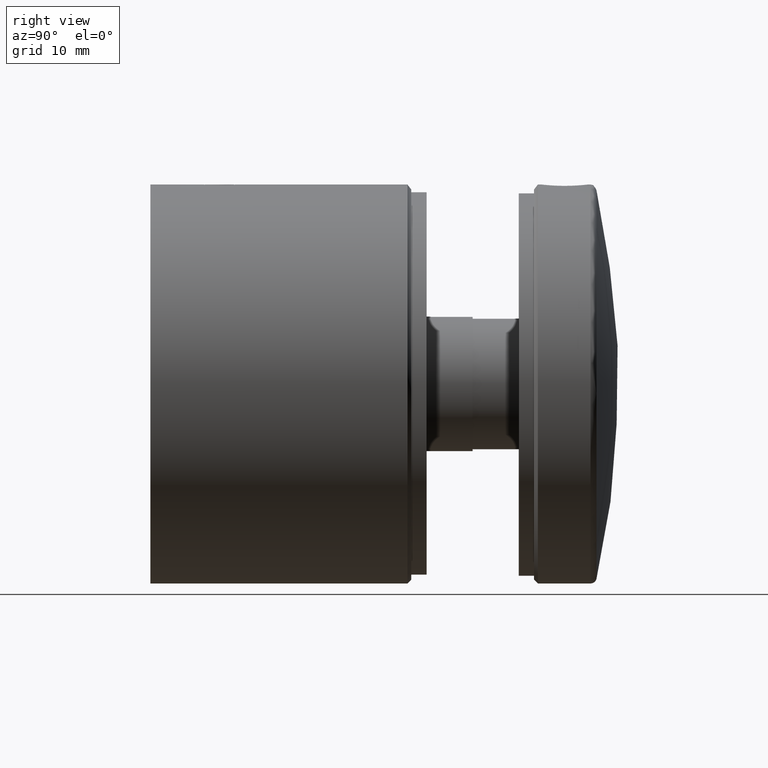
[diagram: clean part render]
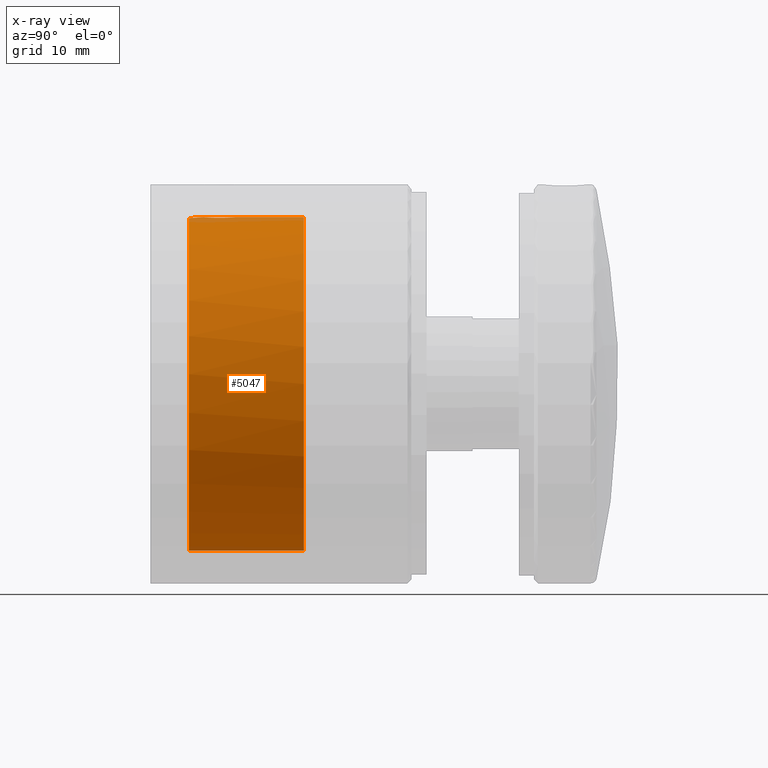
[diagram: x-ray — body ghosted, one internal face saturated and labeled with its STEP entity id]
A machine part, right view, then the same camera in x-ray: the body is ghosted and one INTERNAL B-rep face — a face not visible from any outside direction — is saturated and labeled: STEP entity #5047.
In plain terms, the highlighted cylindrical surface (bore or boss wall) has radius 21.75 mm, axis along (-0, -1, -0).
Its self-contained STEP definition (entity closure, byte-faithful):
#292 = CARTESIAN_POINT ( 'NONE',  ( -0.1358955096395765300, 7.100074436126981000, 21.75000718693534900 ) ) ;
#363 = CARTESIAN_POINT ( 'NONE',  ( -1.052659575912668000, 6.822255985429496400, 21.72481029633196700 ) ) ;
#422 = CARTESIAN_POINT ( 'NONE',  ( 2.044128855569776500, 4.446515183839025600, 21.65398685598034200 ) ) ;
#496 = CARTESIAN_POINT ( 'NONE',  ( -1.053646651611794400, 3.178281708453811300, 21.72476406128912900 ) ) ;
#598 = CYLINDRICAL_SURFACE ( 'NONE', #3577, 21.74999999999999300 ) ;
#648 = CARTESIAN_POINT ( 'NONE',  ( -1.669212042416141000, 6.281574583616015100, 21.68598748840585700 ) ) ;
#852 = VERTEX_POINT ( 'NONE', #7462 ) ;
#948 = DIRECTION ( 'NONE',  ( 0.0000000000000000000, 0.0000000000000000000, -1.000000000000000000 ) ) ;
#1432 = B_SPLINE_CURVE_WITH_KNOTS ( 'NONE', 3,
 ( #7314, #19148, #15677, #14104, #8765, #3835, #7166, #17566, #14169, #12219, #15892, #8983, #10422, #292, #5568, #21050, #1866, #10702, #363, #12439, #15605, #17353, #648, #17709, #15963, #21189, #21264, #17782, #10914, #12804, #9050, #7457, #2371, #14316, #5942, #496, #21409, #5717, #12512, #7387, #21121, #4046, #3973, #19496, #12663, #10777, #12733, #9188, #2293, #18004, #12587, #422, #2221, #14388 ),
 .UNSPECIFIED., .T., .F.,
 ( 4, 2, 2, 2, 2, 2, 2, 2, 2, 2, 2, 2, 2, 2, 2, 2, 2, 2, 2, 2, 2, 2, 2, 2, 2, 2, 4 ),
 ( 0.0000000000000000000, 0.0004105382346277378200, 0.0008210764692554756300, 0.001231614703883213500, 0.001642152938510951300, 0.002463229407766429100, 0.003284305877021907300, 0.003694844111649645800, 0.004105382346277384700, 0.004515920580905123100, 0.004926458815532860700, 0.005336997050160600100, 0.005747535284788338500, 0.006158073519416077000, 0.006568611754043815500, 0.007389688223299295900, 0.008210764692554776300, 0.008621302927182517400, 0.009031841161810258400, 0.009442379396437999500, 0.009852917631065738800, 0.01026345586569347800, 0.01067399410032121900, 0.01108453233494896000, 0.01149507056957670100, 0.01231614703883218200, 0.01313722350808766000 ),
 .UNSPECIFIED. ) ;
#1866 = CARTESIAN_POINT ( 'NONE',  ( -0.6754374641637941300, 6.993169225652276400, 21.73988222341387200 ) ) ;
#2221 = CARTESIAN_POINT ( 'NONE',  ( 2.099999999999997400, 4.722354571395747800, 21.64838331146230400 ) ) ;
#2227 = CARTESIAN_POINT ( 'NONE',  ( 0.0000000000000000000, 16.00000000000000000, 21.74999999999999300 ) ) ;
#2293 = CARTESIAN_POINT ( 'NONE',  ( 1.386853782480603100, 3.417158647802673900, 21.70595702399113900 ) ) ;
#2371 = CARTESIAN_POINT ( 'NONE',  ( -1.679765933844916900, 3.710291927695664100, 21.68590486809005200 ) ) ;
#2494 = EDGE_CURVE ( 'NONE', #4651, #4651, #18751, .T. ) ;
#3457 = ORIENTED_EDGE ( 'NONE', *, *, #20859, .T. ) ;
#3577 = AXIS2_PLACEMENT_3D ( 'NONE', #15280, #21955, #10116 ) ;
#3794 = ORIENTED_EDGE ( 'NONE', *, *, #2494, .T. ) ;
#3835 = CARTESIAN_POINT ( 'NONE',  ( 1.887133650680468300, 5.931487718486305700, 21.66804162629518500 ) ) ;
#3973 = CARTESIAN_POINT ( 'NONE',  ( 0.2734553490011446000, 2.913386764543870000, 21.74869547831716000 ) ) ;
#4046 = CARTESIAN_POINT ( 'NONE',  ( 0.1367105962720693800, 2.899868248667024900, 21.75001272081256300 ) ) ;
#4351 = DIRECTION ( 'NONE',  ( -0.0000000000000000000, -1.000000000000000000, -0.0000000000000000000 ) ) ;
#4433 = DIRECTION ( 'NONE',  ( 0.0000000000000000000, 1.000000000000000000, 0.0000000000000000000 ) ) ;
#4651 = VERTEX_POINT ( 'NONE', #2227 ) ;
#5047 = ADVANCED_FACE ( 'NONE', ( #11408, #14912, #16801 ), #598, .F. ) ;
#5189 = VERTEX_POINT ( 'NONE', #16853 ) ;
#5568 = CARTESIAN_POINT ( 'NONE',  ( -0.2751048808428505600, 7.086427152041024700, 21.74867734979185100 ) ) ;
#5717 = CARTESIAN_POINT ( 'NONE',  ( -0.6790613762871075000, 3.008065564027619500, 21.73976853977434900 ) ) ;
#5942 = CARTESIAN_POINT ( 'NONE',  ( -1.281744753354302000, 3.330880715030999800, 21.71250043574855600 ) ) ;
#6431 = EDGE_LOOP ( 'NONE', ( #3794 ) ) ;
#7166 = CARTESIAN_POINT ( 'NONE',  ( 1.822626473158281100, 6.052073542989715400, 21.67363319944057300 ) ) ;
#7314 = CARTESIAN_POINT ( 'NONE',  ( 2.099999999999997900, 5.000000000000000000, 21.64838331146231100 ) ) ;
#7387 = CARTESIAN_POINT ( 'NONE',  ( -0.2771574582692129500, 2.913874365240851600, 21.74864840813860300 ) ) ;
#7457 = CARTESIAN_POINT ( 'NONE',  ( -1.836010062360262000, 3.944583851818265000, 21.67262297679972200 ) ) ;
#7462 = CARTESIAN_POINT ( 'NONE',  ( 2.099999999999997000, 4.999999999999999100, 21.64838331146230400 ) ) ;
#8332 = AXIS2_PLACEMENT_3D ( 'NONE', #14776, #4433, #9802 ) ;
#8765 = CARTESIAN_POINT ( 'NONE',  ( 1.992567059393881600, 5.677214367124503400, 21.65860055147169300 ) ) ;
#8983 = CARTESIAN_POINT ( 'NONE',  ( 0.5516838227810461100, 7.044615457033726700, 21.74447206496893900 ) ) ;
#9050 = CARTESIAN_POINT ( 'NONE',  ( -2.045121727676634900, 4.450169740814643200, 21.65389103054183600 ) ) ;
#9070 = AXIS2_PLACEMENT_3D ( 'NONE', #21644, #4351, #948 ) ;
#9188 = CARTESIAN_POINT ( 'NONE',  ( 1.278760185513218200, 3.328596978705253000, 21.71267691021284600 ) ) ;
#9802 = DIRECTION ( 'NONE',  ( 0.0000000000000000000, 0.0000000000000000000, 1.000000000000000000 ) ) ;
#9986 = EDGE_CURVE ( 'NONE', #852, #852, #1432, .T. ) ;
#10116 = DIRECTION ( 'NONE',  ( 0.0000000000000000000, 0.0000000000000000000, -1.000000000000000000 ) ) ;
#10422 = CARTESIAN_POINT ( 'NONE',  ( 0.2752273321514816500, 7.099850190583571100, 21.74998553564468300 ) ) ;
#10702 = CARTESIAN_POINT ( 'NONE',  ( -0.9297821351355787200, 6.887973652164142800, 21.73049010117087200 ) ) ;
#10777 = CARTESIAN_POINT ( 'NONE',  ( 0.9298221290303783100, 3.112040392018067700, 21.73048881496666600 ) ) ;
#10914 = CARTESIAN_POINT ( 'NONE',  ( -2.099949600343860500, 5.137853169639274900, 21.64838820047730600 ) ) ;
#11074 = EDGE_LOOP ( 'NONE', ( #3457 ) ) ;
#11408 = FACE_BOUND ( 'NONE', #11773, .T. ) ;
#11773 = EDGE_LOOP ( 'NONE', ( #17266 ) ) ;
#12219 = CARTESIAN_POINT ( 'NONE',  ( 1.291146894646880300, 6.678662908253071100, 21.71251039038009300 ) ) ;
#12439 = CARTESIAN_POINT ( 'NONE',  ( -1.280143908479545600, 6.670311537641098600, 21.71259326215904700 ) ) ;
#12512 = CARTESIAN_POINT ( 'NONE',  ( -0.5456151976140605200, 2.967503880248212300, 21.74356980566062700 ) ) ;
#12587 = CARTESIAN_POINT ( 'NONE',  ( 1.834164769193666700, 3.941393453948776500, 21.67278129674618700 ) ) ;
#12663 = CARTESIAN_POINT ( 'NONE',  ( 0.6753324225987497000, 3.006789827440975700, 21.73988591156846100 ) ) ;
#12733 = CARTESIAN_POINT ( 'NONE',  ( 1.050473026080859200, 3.176453429954822800, 21.72491824244271900 ) ) ;
#12804 = CARTESIAN_POINT ( 'NONE',  ( -2.100100375902282900, 4.726603415180694200, 21.64837357450517200 ) ) ;
#14104 = CARTESIAN_POINT ( 'NONE',  ( 2.032980505208917600, 5.543806549373645300, 21.65479645078803700 ) ) ;
#14169 = CARTESIAN_POINT ( 'NONE',  ( 1.581590501153000000, 6.388277296665847900, 21.69263673290183900 ) ) ;
#14316 = CARTESIAN_POINT ( 'NONE',  ( -1.389648632982440700, 3.419614982696230300, 21.70577740054336100 ) ) ;
#14388 = CARTESIAN_POINT ( 'NONE',  ( 2.099999999999997900, 5.000000000000000000, 21.64838331146231100 ) ) ;
#14776 = CARTESIAN_POINT ( 'NONE',  ( 0.0000000000000000000, 16.00000000000000000, 0.0000000000000000000 ) ) ;
#14912 = FACE_OUTER_BOUND ( 'NONE', #11074, .T. ) ;
#15280 = CARTESIAN_POINT ( 'NONE',  ( 0.0000000000000000000, 0.0000000000000000000, 0.0000000000000000000 ) ) ;
#15605 = CARTESIAN_POINT ( 'NONE',  ( -1.386202372443735300, 6.583559987472837000, 21.70600391651685300 ) ) ;
#15677 = CARTESIAN_POINT ( 'NONE',  ( 2.086370067569942600, 5.275309351184041000, 21.64971775799330400 ) ) ;
#15892 = CARTESIAN_POINT ( 'NONE',  ( 1.056987721572510300, 6.835097916707577600, 21.72577265325626100 ) ) ;
#15963 = CARTESIAN_POINT ( 'NONE',  ( -1.887126034545843400, 5.931506658026682600, 21.66804231142419100 ) ) ;
#16801 = FACE_OUTER_BOUND ( 'NONE', #6431, .T. ) ;
#16853 = CARTESIAN_POINT ( 'NONE',  ( 0.0000000000000000000, 1.000000000000007800, -21.74999999999999300 ) ) ;
#17266 = ORIENTED_EDGE ( 'NONE', *, *, #9986, .T. ) ;
#17353 = CARTESIAN_POINT ( 'NONE',  ( -1.582345586245643000, 6.387588446544056000, 21.69258733961678900 ) ) ;
#17566 = CARTESIAN_POINT ( 'NONE',  ( 1.670236837092357300, 6.280287041462206500, 21.68590907092830000 ) ) ;
#17709 = CARTESIAN_POINT ( 'NONE',  ( -1.821326496742648100, 6.054263746972632800, 21.67374199306859900 ) ) ;
#17782 = CARTESIAN_POINT ( 'NONE',  ( -2.086159856786573600, 5.277090331791148600, 21.64973828393509000 ) ) ;
#18004 = CARTESIAN_POINT ( 'NONE',  ( 1.677557323868993800, 3.707404910283190500, 21.68607932270053600 ) ) ;
#18751 = CIRCLE ( 'NONE', #8332, 21.74999999999999300 ) ;
#19148 = CARTESIAN_POINT ( 'NONE',  ( 2.099999999999997900, 5.138822714302124300, 21.64838331146231500 ) ) ;
#19496 = CARTESIAN_POINT ( 'NONE',  ( 0.5419809510207157500, 2.966532697334742800, 21.74366090347256600 ) ) ;
#20859 = EDGE_CURVE ( 'NONE', #5189, #5189, #22247, .T. ) ;
#21050 = CARTESIAN_POINT ( 'NONE',  ( -0.5444946943955960600, 7.032827214500198200, 21.74360077559804000 ) ) ;
#21121 = CARTESIAN_POINT ( 'NONE',  ( -0.1407287122436174900, 2.900133673387701400, 21.74998709360977100 ) ) ;
#21189 = CARTESIAN_POINT ( 'NONE',  ( -1.992577234739893600, 5.677189255529857100, 21.65859963717704800 ) ) ;
#21264 = CARTESIAN_POINT ( 'NONE',  ( -2.032339381275456000, 5.546295377389207600, 21.65485689978740400 ) ) ;
#21409 = CARTESIAN_POINT ( 'NONE',  ( -0.9331347341929171500, 3.113684353608795700, 21.73034560432875000 ) ) ;
#21644 = CARTESIAN_POINT ( 'NONE',  ( 0.0000000000000000000, 1.000000000000007800, 0.0000000000000000000 ) ) ;
#21955 = DIRECTION ( 'NONE',  ( -0.0000000000000000000, -1.000000000000000000, -0.0000000000000000000 ) ) ;
#22247 = CIRCLE ( 'NONE', #9070, 21.74999999999999300 ) ;